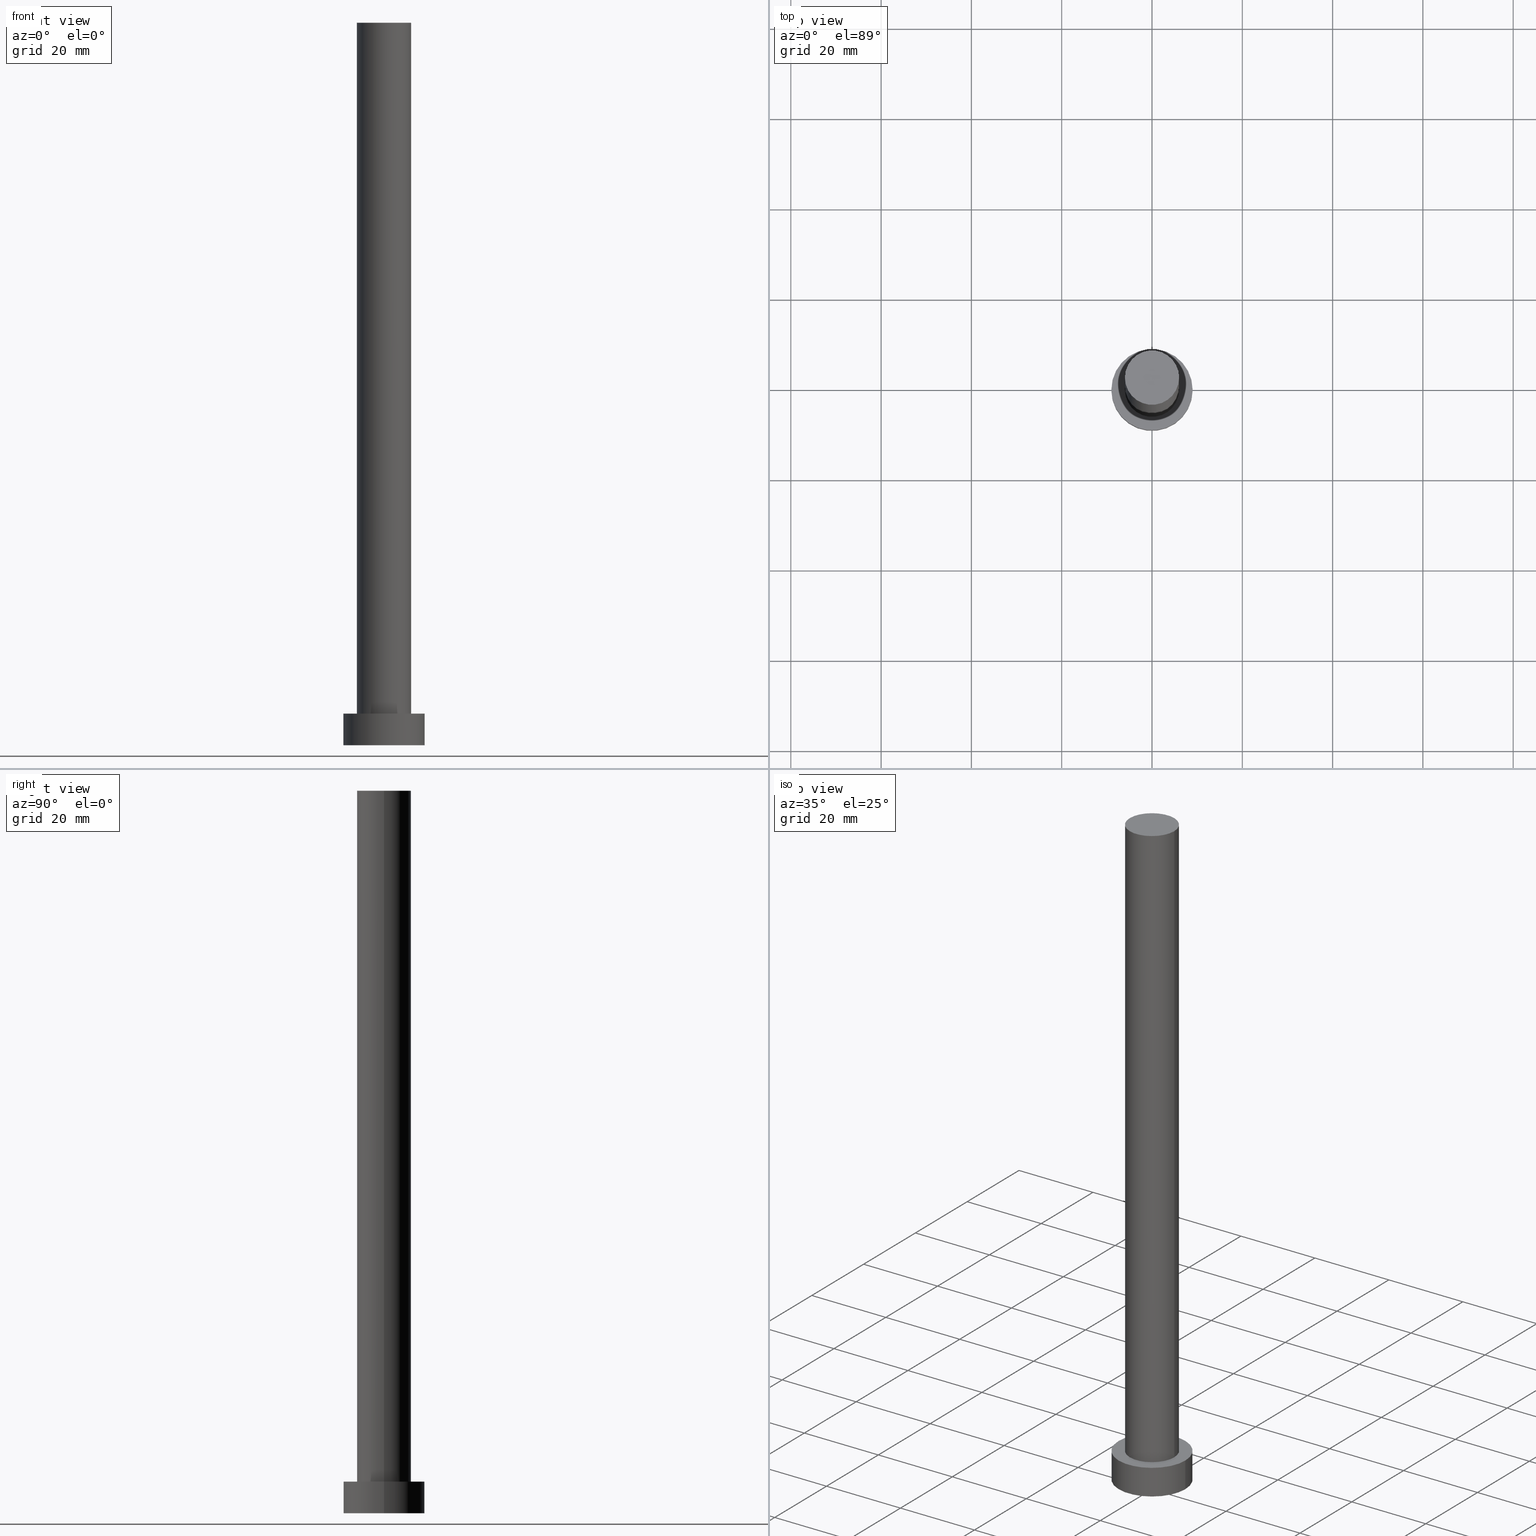
[diagram: canonical four-view strip — front | top / right | iso, engineering-drawing reading convention]
A machine part, canonical four-view strip (front | top / right | iso — engineering-drawing reading convention). The complete STEP part file that produces these views, byte-faithful:
ISO-10303-21;
HEADER;
FILE_DESCRIPTION (( 'STEP AP203' ),
    '1' );
FILE_NAME ('0bee.STEP',
    '2023-02-12T10:49:46',
    ( '' ),
    ( '' ),
    'SwSTEP 2.0',
    'SolidWorks 2019',
    '' );
FILE_SCHEMA (( 'CONFIG_CONTROL_DESIGN' ));
ENDSEC;

DATA;
#1 = ADVANCED_FACE ( 'NONE', ( #102 ), #185, .F. ) ;
#2 = FACE_OUTER_BOUND ( 'NONE', #57, .T. ) ;
#3 = CARTESIAN_POINT ( 'NONE',  ( 0.000000000000000000, 0.000000000000000000, 0.000000000000000000 ) ) ;
#4 = CARTESIAN_POINT ( 'NONE',  ( 9.000000000000000000, 1.102182119232617714E-15, 7.000000000000000000 ) ) ;
#5 = EDGE_CURVE ( 'NONE', #182, #201, #116, .T. ) ;
#6 = DIRECTION ( 'NONE',  ( -1.000000000000000000, 0.000000000000000000, 0.000000000000000000 ) ) ;
#7 = APPROVAL_PERSON_ORGANIZATION ( #96, #234, #20 ) ;
#8 = CARTESIAN_POINT ( 'NONE',  ( 0.000000000000000000, 0.000000000000000000, 7.000000000000000000 ) ) ;
#9 = APPLICATION_CONTEXT ( 'configuration controlled 3d designs of mechanical parts and assemblies' ) ;
#10 = CC_DESIGN_DATE_AND_TIME_ASSIGNMENT ( #150, #231, ( #241 ) ) ;
#11 = CARTESIAN_POINT ( 'NONE',  ( 0.000000000000000000, 0.000000000000000000, 7.000000000000000000 ) ) ;
#12 = CARTESIAN_POINT ( 'NONE',  ( -6.000000000000000888, 0.000000000000000000, 160.0000000000000000 ) ) ;
#13 = CIRCLE ( 'NONE', #22, 9.000000000000000000 ) ;
#14 = PERSON_AND_ORGANIZATION_ROLE ( 'creator' ) ;
#15 = CC_DESIGN_DATE_AND_TIME_ASSIGNMENT ( #39, #113, ( #27 ) ) ;
#16 = APPROVAL_ROLE ( '' ) ;
#17 = CIRCLE ( 'NONE', #38, 9.000000000000000000 ) ;
#18 = APPROVAL_ROLE ( '' ) ;
#19 = ADVANCED_FACE ( 'NONE', ( #2 ), #162, .T. ) ;
#20 = APPROVAL_ROLE ( '' ) ;
#21 = VERTEX_POINT ( 'NONE', #238 ) ;
#22 = AXIS2_PLACEMENT_3D ( 'NONE', #240, #172, #84 ) ;
#23 = LOCAL_TIME ( 11, 49, 46.00000000000000000, #173 ) ;
#24 = ORIENTED_EDGE ( 'NONE', *, *, #214, .T. ) ;
#25 = ORIENTED_EDGE ( 'NONE', *, *, #78, .T. ) ;
#26 = ORIENTED_EDGE ( 'NONE', *, *, #228, .F. ) ;
#27 = SECURITY_CLASSIFICATION ( '', '', #248 ) ;
#28 = CARTESIAN_POINT ( 'NONE',  ( 0.000000000000000000, 0.000000000000000000, 0.000000000000000000 ) ) ;
#29 = EDGE_CURVE ( 'NONE', #82, #217, #152, .T. ) ;
#30 = DIRECTION ( 'NONE',  ( 0.000000000000000000, 0.000000000000000000, 1.000000000000000000 ) ) ;
#31 = DIRECTION ( 'NONE',  ( 1.000000000000000000, 0.000000000000000000, -0.000000000000000000 ) ) ;
#32 = FACE_OUTER_BOUND ( 'NONE', #223, .T. ) ;
#33 = CARTESIAN_POINT ( 'NONE',  ( -9.000000000000000000, 0.000000000000000000, 7.000000000000000000 ) ) ;
#34 = APPROVAL_PERSON_ORGANIZATION ( #249, #97, #16 ) ;
#35 = DESIGN_CONTEXT ( 'detailed design', #9, 'design' ) ;
#36 = DATE_AND_TIME ( #212, #178 ) ;
#37 = AXIS2_PLACEMENT_3D ( 'NONE', #45, #180, #83 ) ;
#38 = AXIS2_PLACEMENT_3D ( 'NONE', #11, #243, #107 ) ;
#39 = DATE_AND_TIME ( #195, #184 ) ;
#40 = ORIENTED_EDGE ( 'NONE', *, *, #78, .F. ) ;
#41 = LOCAL_TIME ( 11, 49, 46.00000000000000000, #75 ) ;
#42 = ADVANCED_FACE ( 'NONE', ( #254 ), #118, .T. ) ;
#43 = VERTEX_POINT ( 'NONE', #139 ) ;
#44 = ORIENTED_EDGE ( 'NONE', *, *, #130, .F. ) ;
#45 = CARTESIAN_POINT ( 'NONE',  ( 0.000000000000000000, 0.000000000000000000, 160.0000000000000000 ) ) ;
#46 = CIRCLE ( 'NONE', #94, 9.000000000000000000 ) ;
#47 = CARTESIAN_POINT ( 'NONE',  ( 0.000000000000000000, 0.000000000000000000, 160.0000000000000000 ) ) ;
#48 = DIRECTION ( 'NONE',  ( -1.000000000000000000, 0.000000000000000000, 0.000000000000000000 ) ) ;
#49 = DIRECTION ( 'NONE',  ( -0.000000000000000000, -0.000000000000000000, -1.000000000000000000 ) ) ;
#50 = CLOSED_SHELL ( 'NONE', ( #95, #19, #168, #221, #1, #42, #58 ) ) ;
#51 = PLANE ( 'NONE',  #123 ) ;
#52 = DIRECTION ( 'NONE',  ( 1.000000000000000000, 0.000000000000000000, 0.000000000000000000 ) ) ;
#53 = APPROVAL_DATE_TIME ( #154, #97 ) ;
#54 = CC_DESIGN_APPROVAL ( #225, ( #27 ) ) ;
#55 = APPROVAL_STATUS ( 'not_yet_approved' ) ;
#56 =( NAMED_UNIT ( * ) SI_UNIT ( $, .STERADIAN. ) SOLID_ANGLE_UNIT ( ) );
#57 = EDGE_LOOP ( 'NONE', ( #44, #25, #202, #63 ) ) ;
#58 = ADVANCED_FACE ( 'NONE', ( #65 ), #167, .T. ) ;
#59 = DIRECTION ( 'NONE',  ( -1.000000000000000000, 0.000000000000000000, 0.000000000000000000 ) ) ;
#60 = EDGE_LOOP ( 'NONE', ( #77, #80 ) ) ;
#61 = ORIENTED_EDGE ( 'NONE', *, *, #69, .T. ) ;
#62 = MANIFOLD_SOLID_BREP ( 'P�idat vysunut�m3', #50 ) ;
#63 = ORIENTED_EDGE ( 'NONE', *, *, #214, .F. ) ;
#64 = DIRECTION ( 'NONE',  ( 0.000000000000000000, 0.000000000000000000, 1.000000000000000000 ) ) ;
#65 = FACE_OUTER_BOUND ( 'NONE', #122, .T. ) ;
#66 = DIRECTION ( 'NONE',  ( 0.000000000000000000, 0.000000000000000000, 1.000000000000000000 ) ) ;
#67 = CARTESIAN_POINT ( 'NONE',  ( 9.000000000000000000, 1.102182119232617714E-15, 0.000000000000000000 ) ) ;
#68 = DIRECTION ( 'NONE',  ( 0.000000000000000000, 0.000000000000000000, 1.000000000000000000 ) ) ;
#69 = EDGE_CURVE ( 'NONE', #21, #239, #245, .T. ) ;
#70 = CALENDAR_DATE ( 2023, 12, 2 ) ;
#71 = COORDINATED_UNIVERSAL_TIME_OFFSET ( 1, 0, .AHEAD. ) ;
#72 = CIRCLE ( 'NONE', #104, 6.000000000000000888 ) ;
#73 = APPROVAL_DATE_TIME ( #36, #225 ) ;
#74 = PERSON_AND_ORGANIZATION_ROLE ( 'classification_officer' ) ;
#75 = COORDINATED_UNIVERSAL_TIME_OFFSET ( 1, 0, .AHEAD. ) ;
#76 = CC_DESIGN_APPROVAL ( #97, ( #171 ) ) ;
#77 = ORIENTED_EDGE ( 'NONE', *, *, #135, .F. ) ;
#78 = EDGE_CURVE ( 'NONE', #43, #182, #112, .T. ) ;
#79 = CARTESIAN_POINT ( 'NONE',  ( 0.000000000000000000, 0.000000000000000000, 160.0000000000000000 ) ) ;
#80 = ORIENTED_EDGE ( 'NONE', *, *, #69, .F. ) ;
#81 = AXIS2_PLACEMENT_3D ( 'NONE', #142, #222, #197 ) ;
#82 = VERTEX_POINT ( 'NONE', #204 ) ;
#83 = DIRECTION ( 'NONE',  ( 1.000000000000000000, 0.000000000000000000, 0.000000000000000000 ) ) ;
#84 = DIRECTION ( 'NONE',  ( 1.000000000000000000, 0.000000000000000000, 0.000000000000000000 ) ) ;
#85 = DIRECTION ( 'NONE',  ( -0.000000000000000000, -0.000000000000000000, -1.000000000000000000 ) ) ;
#86 = LINE ( 'NONE', #188, #233 ) ;
#87 =( LENGTH_UNIT ( ) NAMED_UNIT ( * ) SI_UNIT ( .MILLI., .METRE. ) );
#88 = AXIS2_PLACEMENT_3D ( 'NONE', #145, #64, #111 ) ;
#89 = FACE_OUTER_BOUND ( 'NONE', #237, .T. ) ;
#90 = APPROVAL_STATUS ( 'not_yet_approved' ) ;
#91 = CALENDAR_DATE ( 2023, 12, 2 ) ;
#92 = PERSON_AND_ORGANIZATION ( #192, #210 ) ;
#93 = PRODUCT_DEFINITION_SHAPE ( 'NONE', 'NONE',  #241 ) ;
#94 = AXIS2_PLACEMENT_3D ( 'NONE', #125, #68, #129 ) ;
#95 = ADVANCED_FACE ( 'NONE', ( #89 ), #131, .T. ) ;
#96 = PERSON_AND_ORGANIZATION ( #192, #210 ) ;
#97 = APPROVAL ( #177, 'NEUR�EN�' ) ;
#98 = EDGE_LOOP ( 'NONE', ( #235, #160 ) ) ;
#99 = AXIS2_PLACEMENT_3D ( 'NONE', #205, #244, #6 ) ;
#100 = DIRECTION ( 'NONE',  ( 0.000000000000000000, 0.000000000000000000, 1.000000000000000000 ) ) ;
#101 = ORIENTED_EDGE ( 'NONE', *, *, #117, .T. ) ;
#102 = FACE_OUTER_BOUND ( 'NONE', #98, .T. ) ;
#103 = AXIS2_PLACEMENT_3D ( 'NONE', #127, #30, #31 ) ;
#104 = AXIS2_PLACEMENT_3D ( 'NONE', #108, #66, #246 ) ;
#105 = ORIENTED_EDGE ( 'NONE', *, *, #156, .F. ) ;
#106 = ADVANCED_BREP_SHAPE_REPRESENTATION ( '0bee', ( #62, #133 ), #140 ) ;
#107 = DIRECTION ( 'NONE',  ( 1.000000000000000000, 0.000000000000000000, 0.000000000000000000 ) ) ;
#108 = CARTESIAN_POINT ( 'NONE',  ( 0.000000000000000000, 0.000000000000000000, 7.000000000000000000 ) ) ;
#109 = APPROVAL_PERSON_ORGANIZATION ( #193, #225, #18 ) ;
#110 = FACE_OUTER_BOUND ( 'NONE', #159, .T. ) ;
#111 = DIRECTION ( 'NONE',  ( 1.000000000000000000, 0.000000000000000000, 0.000000000000000000 ) ) ;
#112 = LINE ( 'NONE', #4, #137 ) ;
#113 = DATE_TIME_ROLE ( 'classification_date' ) ;
#114 = APPLICATION_PROTOCOL_DEFINITION ( 'international standard', 'config_control_design', 1994, #169 ) ;
#115 = PERSON_AND_ORGANIZATION_ROLE ( 'creator' ) ;
#116 = CIRCLE ( 'NONE', #124, 9.000000000000000000 ) ;
#117 = EDGE_CURVE ( 'NONE', #201, #182, #13, .T. ) ;
#118 = CYLINDRICAL_SURFACE ( 'NONE', #209, 6.000000000000000888 ) ;
#119 = ORIENTED_EDGE ( 'NONE', *, *, #29, .F. ) ;
#120 = ORIENTED_EDGE ( 'NONE', *, *, #29, .T. ) ;
#121 = ORIENTED_EDGE ( 'NONE', *, *, #156, .T. ) ;
#122 = EDGE_LOOP ( 'NONE', ( #253, #120 ) ) ;
#123 = AXIS2_PLACEMENT_3D ( 'NONE', #8, #147, #226 ) ;
#124 = AXIS2_PLACEMENT_3D ( 'NONE', #28, #141, #183 ) ;
#125 = CARTESIAN_POINT ( 'NONE',  ( 0.000000000000000000, 0.000000000000000000, 7.000000000000000000 ) ) ;
#126 = EDGE_CURVE ( 'NONE', #217, #82, #158, .T. ) ;
#127 = CARTESIAN_POINT ( 'NONE',  ( 0.000000000000000000, 0.000000000000000000, 160.0000000000000000 ) ) ;
#128 = DIRECTION ( 'NONE',  ( -0.000000000000000000, -0.000000000000000000, -1.000000000000000000 ) ) ;
#129 = DIRECTION ( 'NONE',  ( 1.000000000000000000, 0.000000000000000000, 0.000000000000000000 ) ) ;
#130 = EDGE_CURVE ( 'NONE', #43, #255, #17, .T. ) ;
#131 = CYLINDRICAL_SURFACE ( 'NONE', #99, 6.000000000000000888 ) ;
#132 = AXIS2_PLACEMENT_3D ( 'NONE', #3, #100, #163 ) ;
#133 = AXIS2_PLACEMENT_3D ( 'NONE', #252, #250, #52 ) ;
#134 = PERSON_AND_ORGANIZATION ( #192, #210 ) ;
#135 = EDGE_CURVE ( 'NONE', #239, #21, #72, .T. ) ;
#136 = COORDINATED_UNIVERSAL_TIME_OFFSET ( 1, 0, .AHEAD. ) ;
#137 = VECTOR ( 'NONE', #85, 1000.000000000000000 ) ;
#138 = ORIENTED_EDGE ( 'NONE', *, *, #228, .T. ) ;
#139 = CARTESIAN_POINT ( 'NONE',  ( 9.000000000000000000, 1.102182119232617714E-15, 7.000000000000000000 ) ) ;
#140 =( GEOMETRIC_REPRESENTATION_CONTEXT ( 3 ) GLOBAL_UNCERTAINTY_ASSIGNED_CONTEXT ( ( #251 ) ) GLOBAL_UNIT_ASSIGNED_CONTEXT ( ( #87, #149, #56 ) ) REPRESENTATION_CONTEXT ( 'NONE', 'WORKASPACE' ) );
#141 = DIRECTION ( 'NONE',  ( 0.000000000000000000, 0.000000000000000000, 1.000000000000000000 ) ) ;
#142 = CARTESIAN_POINT ( 'NONE',  ( 0.000000000000000000, 0.000000000000000000, 7.000000000000000000 ) ) ;
#143 = EDGE_CURVE ( 'NONE', #82, #21, #164, .T. ) ;
#144 = AXIS2_PLACEMENT_3D ( 'NONE', #47, #170, #208 ) ;
#145 = CARTESIAN_POINT ( 'NONE',  ( 0.000000000000000000, 0.000000000000000000, 7.000000000000000000 ) ) ;
#146 = CARTESIAN_POINT ( 'NONE',  ( 6.000000000000000888, 7.347880794884120722E-16, 160.0000000000000000 ) ) ;
#147 = DIRECTION ( 'NONE',  ( 0.000000000000000000, 0.000000000000000000, 1.000000000000000000 ) ) ;
#148 = FACE_BOUND ( 'NONE', #60, .T. ) ;
#149 =( NAMED_UNIT ( * ) PLANE_ANGLE_UNIT ( ) SI_UNIT ( $, .RADIAN. ) );
#150 = DATE_AND_TIME ( #70, #41 ) ;
#151 = CC_DESIGN_PERSON_AND_ORGANIZATION_ASSIGNMENT ( #92, #74, ( #27 ) ) ;
#152 = CIRCLE ( 'NONE', #37, 6.000000000000000888 ) ;
#153 = AXIS2_PLACEMENT_3D ( 'NONE', #224, #166, #48 ) ;
#154 = DATE_AND_TIME ( #155, #157 ) ;
#155 = CALENDAR_DATE ( 2023, 12, 2 ) ;
#156 = EDGE_CURVE ( 'NONE', #217, #239, #189, .T. ) ;
#157 = LOCAL_TIME ( 11, 49, 46.00000000000000000, #71 ) ;
#158 = CIRCLE ( 'NONE', #144, 6.000000000000000888 ) ;
#159 = EDGE_LOOP ( 'NONE', ( #138, #161 ) ) ;
#160 = ORIENTED_EDGE ( 'NONE', *, *, #5, .F. ) ;
#161 = ORIENTED_EDGE ( 'NONE', *, *, #130, .T. ) ;
#162 = CYLINDRICAL_SURFACE ( 'NONE', #81, 9.000000000000000000 ) ;
#163 = DIRECTION ( 'NONE',  ( 1.000000000000000000, 0.000000000000000000, -0.000000000000000000 ) ) ;
#164 = LINE ( 'NONE', #146, #218 ) ;
#165 = VECTOR ( 'NONE', #187, 1000.000000000000000 ) ;
#166 = DIRECTION ( 'NONE',  ( -0.000000000000000000, -0.000000000000000000, -1.000000000000000000 ) ) ;
#167 = PLANE ( 'NONE',  #103 ) ;
#168 = ADVANCED_FACE ( 'NONE', ( #32 ), #186, .T. ) ;
#169 = APPLICATION_CONTEXT ( 'configuration controlled 3d designs of mechanical parts and assemblies' ) ;
#170 = DIRECTION ( 'NONE',  ( 0.000000000000000000, 0.000000000000000000, 1.000000000000000000 ) ) ;
#171 = PRODUCT_DEFINITION_FORMATION_WITH_SPECIFIED_SOURCE ( 'LIBOVOLN�', '', #229, .NOT_KNOWN. ) ;
#172 = DIRECTION ( 'NONE',  ( 0.000000000000000000, 0.000000000000000000, 1.000000000000000000 ) ) ;
#173 = COORDINATED_UNIVERSAL_TIME_OFFSET ( 1, 0, .AHEAD. ) ;
#174 = PERSON_AND_ORGANIZATION ( #192, #210 ) ;
#175 = SHAPE_DEFINITION_REPRESENTATION ( #93, #106 ) ;
#176 = PERSON_AND_ORGANIZATION ( #192, #210 ) ;
#177 = APPROVAL_STATUS ( 'not_yet_approved' ) ;
#178 = LOCAL_TIME ( 11, 49, 46.00000000000000000, #136 ) ;
#179 = ORIENTED_EDGE ( 'NONE', *, *, #135, .T. ) ;
#180 = DIRECTION ( 'NONE',  ( 0.000000000000000000, 0.000000000000000000, 1.000000000000000000 ) ) ;
#181 = PRODUCT_RELATED_PRODUCT_CATEGORY ( 'detail', '', ( #229 ) ) ;
#182 = VERTEX_POINT ( 'NONE', #67 ) ;
#183 = DIRECTION ( 'NONE',  ( 1.000000000000000000, 0.000000000000000000, 0.000000000000000000 ) ) ;
#184 = LOCAL_TIME ( 11, 49, 46.00000000000000000, #232 ) ;
#185 = PLANE ( 'NONE',  #132 ) ;
#186 = CYLINDRICAL_SURFACE ( 'NONE', #153, 9.000000000000000000 ) ;
#187 = DIRECTION ( 'NONE',  ( -0.000000000000000000, -0.000000000000000000, -1.000000000000000000 ) ) ;
#188 = CARTESIAN_POINT ( 'NONE',  ( -9.000000000000000000, 0.000000000000000000, 7.000000000000000000 ) ) ;
#189 = LINE ( 'NONE', #206, #165 ) ;
#190 = CC_DESIGN_APPROVAL ( #234, ( #241 ) ) ;
#191 = CC_DESIGN_PERSON_AND_ORGANIZATION_ASSIGNMENT ( #174, #14, ( #241 ) ) ;
#192 = PERSON ( 'NEUR�EN�', 'NEUR�EN�', 'NEUR�EN�', ('NEUR�EN�'), ('NEUR�EN�'), ('NEUR�EN�') ) ;
#193 = PERSON_AND_ORGANIZATION ( #192, #210 ) ;
#194 = DATE_AND_TIME ( #91, #23 ) ;
#195 = CALENDAR_DATE ( 2023, 12, 2 ) ;
#196 = PERSON_AND_ORGANIZATION_ROLE ( 'design_owner' ) ;
#197 = DIRECTION ( 'NONE',  ( -1.000000000000000000, 0.000000000000000000, 0.000000000000000000 ) ) ;
#198 = CC_DESIGN_PERSON_AND_ORGANIZATION_ASSIGNMENT ( #211, #115, ( #171 ) ) ;
#199 = CC_DESIGN_SECURITY_CLASSIFICATION ( #27, ( #171 ) ) ;
#200 = ORIENTED_EDGE ( 'NONE', *, *, #126, .F. ) ;
#201 = VERTEX_POINT ( 'NONE', #242 ) ;
#202 = ORIENTED_EDGE ( 'NONE', *, *, #5, .T. ) ;
#203 = ORIENTED_EDGE ( 'NONE', *, *, #143, .F. ) ;
#204 = CARTESIAN_POINT ( 'NONE',  ( 6.000000000000000888, 7.347880794884120722E-16, 160.0000000000000000 ) ) ;
#205 = CARTESIAN_POINT ( 'NONE',  ( 0.000000000000000000, 0.000000000000000000, 160.0000000000000000 ) ) ;
#206 = CARTESIAN_POINT ( 'NONE',  ( -6.000000000000000888, 0.000000000000000000, 160.0000000000000000 ) ) ;
#207 = CC_DESIGN_PERSON_AND_ORGANIZATION_ASSIGNMENT ( #134, #196, ( #229 ) ) ;
#208 = DIRECTION ( 'NONE',  ( 1.000000000000000000, 0.000000000000000000, 0.000000000000000000 ) ) ;
#209 = AXIS2_PLACEMENT_3D ( 'NONE', #79, #236, #59 ) ;
#210 = ORGANIZATION ( 'NEUR�EN�', 'NEUR�EN�', '' ) ;
#211 = PERSON_AND_ORGANIZATION ( #192, #210 ) ;
#212 = CALENDAR_DATE ( 2023, 12, 2 ) ;
#213 = PERSON_AND_ORGANIZATION_ROLE ( 'design_supplier' ) ;
#214 = EDGE_CURVE ( 'NONE', #255, #201, #86, .T. ) ;
#215 = APPLICATION_PROTOCOL_DEFINITION ( 'international standard', 'config_control_design', 1994, #9 ) ;
#216 = CC_DESIGN_PERSON_AND_ORGANIZATION_ASSIGNMENT ( #176, #213, ( #171 ) ) ;
#217 = VERTEX_POINT ( 'NONE', #12 ) ;
#218 = VECTOR ( 'NONE', #49, 1000.000000000000000 ) ;
#219 = ORIENTED_EDGE ( 'NONE', *, *, #143, .T. ) ;
#220 = EDGE_LOOP ( 'NONE', ( #203, #200, #121, #179 ) ) ;
#221 = ADVANCED_FACE ( 'NONE', ( #148, #110 ), #51, .T. ) ;
#222 = DIRECTION ( 'NONE',  ( -0.000000000000000000, -0.000000000000000000, -1.000000000000000000 ) ) ;
#223 = EDGE_LOOP ( 'NONE', ( #40, #26, #24, #101 ) ) ;
#224 = CARTESIAN_POINT ( 'NONE',  ( 0.000000000000000000, 0.000000000000000000, 7.000000000000000000 ) ) ;
#225 = APPROVAL ( #55, 'NEUR�EN�' ) ;
#226 = DIRECTION ( 'NONE',  ( 1.000000000000000000, 0.000000000000000000, -0.000000000000000000 ) ) ;
#227 = CARTESIAN_POINT ( 'NONE',  ( -6.000000000000000888, 0.000000000000000000, 7.000000000000000000 ) ) ;
#228 = EDGE_CURVE ( 'NONE', #255, #43, #46, .T. ) ;
#229 = PRODUCT ( '0bee', '0bee', '', ( #230 ) ) ;
#230 = MECHANICAL_CONTEXT ( 'NONE', #169, 'mechanical' ) ;
#231 = DATE_TIME_ROLE ( 'creation_date' ) ;
#232 = COORDINATED_UNIVERSAL_TIME_OFFSET ( 1, 0, .AHEAD. ) ;
#233 = VECTOR ( 'NONE', #128, 1000.000000000000000 ) ;
#234 = APPROVAL ( #90, 'NEUR�EN�' ) ;
#235 = ORIENTED_EDGE ( 'NONE', *, *, #117, .F. ) ;
#236 = DIRECTION ( 'NONE',  ( -0.000000000000000000, -0.000000000000000000, -1.000000000000000000 ) ) ;
#237 = EDGE_LOOP ( 'NONE', ( #119, #219, #61, #105 ) ) ;
#238 = CARTESIAN_POINT ( 'NONE',  ( 6.000000000000000888, 7.347880794884120722E-16, 7.000000000000000000 ) ) ;
#239 = VERTEX_POINT ( 'NONE', #227 ) ;
#240 = CARTESIAN_POINT ( 'NONE',  ( 0.000000000000000000, 0.000000000000000000, 0.000000000000000000 ) ) ;
#241 = PRODUCT_DEFINITION ( 'NEZN�M�', '', #171, #35 ) ;
#242 = CARTESIAN_POINT ( 'NONE',  ( -9.000000000000000000, 0.000000000000000000, 0.000000000000000000 ) ) ;
#243 = DIRECTION ( 'NONE',  ( 0.000000000000000000, 0.000000000000000000, 1.000000000000000000 ) ) ;
#244 = DIRECTION ( 'NONE',  ( -0.000000000000000000, -0.000000000000000000, -1.000000000000000000 ) ) ;
#245 = CIRCLE ( 'NONE', #88, 6.000000000000000888 ) ;
#246 = DIRECTION ( 'NONE',  ( 1.000000000000000000, 0.000000000000000000, 0.000000000000000000 ) ) ;
#247 = APPROVAL_DATE_TIME ( #194, #234 ) ;
#248 = SECURITY_CLASSIFICATION_LEVEL ( 'unclassified' ) ;
#249 = PERSON_AND_ORGANIZATION ( #192, #210 ) ;
#250 = DIRECTION ( 'NONE',  ( 0.000000000000000000, 0.000000000000000000, 1.000000000000000000 ) ) ;
#251 = UNCERTAINTY_MEASURE_WITH_UNIT (LENGTH_MEASURE( 1.000000000000000082E-05 ), #87, 'distance_accuracy_value', 'NONE');
#252 = CARTESIAN_POINT ( 'NONE',  ( 0.000000000000000000, 0.000000000000000000, 0.000000000000000000 ) ) ;
#253 = ORIENTED_EDGE ( 'NONE', *, *, #126, .T. ) ;
#254 = FACE_OUTER_BOUND ( 'NONE', #220, .T. ) ;
#255 = VERTEX_POINT ( 'NONE', #33 ) ;
ENDSEC;
END-ISO-10303-21;
